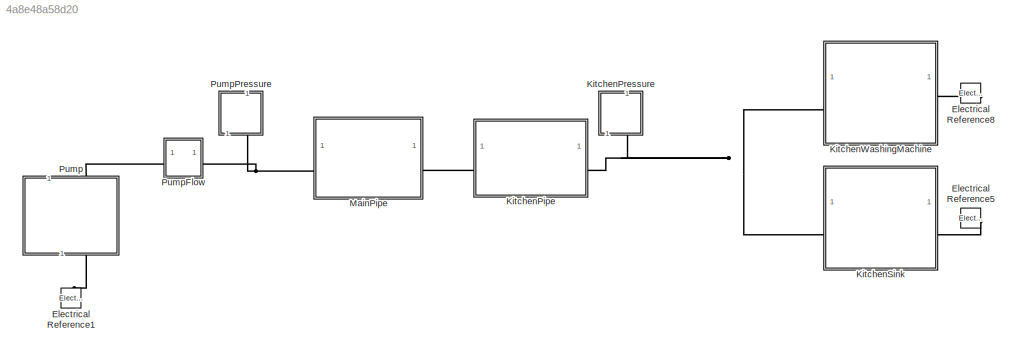
MODEL slx_4a8e48a58d20
KIND model
CONFIG AbsTol = 1e-3
CONFIG EnableMultiTasking = off
CONFIG FixedStep = auto
CONFIG MaxStep = auto
CONFIG MinStep = auto
CONFIG RelTol = 1e-3
CONFIG SampleTimeConstraint = Unconstrained
CONFIG SolverName = VariableStepAuto
CONFIG StartTime = 0.0
CONFIG StopTime = 10
BLOCK [Reference] Electrical Reference1  REF=fl_lib/Electrical/Electrical Elements/Electrical Reference
  SourceBlock = fl_lib/Electrical/Electrical Elements/Electrical Reference
  SourceType = Electrical Reference
BLOCK [Reference] Electrical Reference5  REF=fl_lib/Electrical/Electrical Elements/Electrical Reference
  NameLocation = right
  SourceBlock = fl_lib/Electrical/Electrical Elements/Electrical Reference
  SourceType = Electrical Reference
BLOCK [Reference] Electrical Reference8  REF=fl_lib/Electrical/Electrical Elements/Electrical Reference
  NameLocation = right
  SourceBlock = fl_lib/Electrical/Electrical Elements/Electrical Reference
  SourceType = Electrical Reference
BLOCK [SubSystem] KitchenPipe
  C = 1
  L = 1
  R = 1
  ReferencedSubsystem = PipeModel
  icon = on
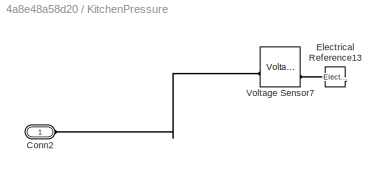
BLOCK [SubSystem] KitchenPressure
  NameLocation = right
BLOCK [PMIOPort] KitchenPressure/Conn2
  Side = Left
BLOCK [Reference] KitchenPressure/Electrical Reference13  REF=fl_lib/Electrical/Electrical Elements/Electrical Reference
  NameLocation = right
  SourceBlock = fl_lib/Electrical/Electrical Elements/Electrical Reference
  SourceType = Electrical Reference
BLOCK [Reference] KitchenPressure/Voltage Sensor7  REF=fl_lib/Electrical/Electrical Sensors/Voltage Sensor
  SourceBlock = fl_lib/Electrical/Electrical Sensors/Voltage Sensor
  SourceType = Voltage Sensor
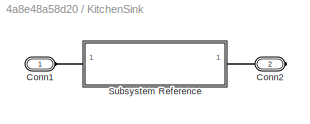
BLOCK [SubSystem] KitchenSink
BLOCK [PMIOPort] KitchenSink/Conn1
  Side = Left
BLOCK [PMIOPort] KitchenSink/Conn2
  Port = 2
  Side = Right
BLOCK [SubSystem] KitchenSink/Subsystem Reference
  R = R
  ReferencedSubsystem = ApplianceModel
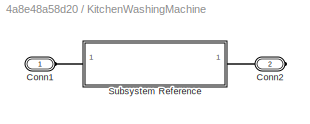
BLOCK [SubSystem] KitchenWashingMachine
BLOCK [PMIOPort] KitchenWashingMachine/Conn1
  Side = Left
BLOCK [PMIOPort] KitchenWashingMachine/Conn2
  Port = 2
  Side = Right
BLOCK [SubSystem] KitchenWashingMachine/Subsystem Reference
  R = R
  ReferencedSubsystem = ApplianceModel
BLOCK [SubSystem] MainPipe
  C = 1
  L = 1
  R = 1
  ReferencedSubsystem = PipeModel
  icon = on
BLOCK [SubSystem] Pump
  NameLocation = right
  ReferencedSubsystem = PumpModel
  V = 1
  icon = on
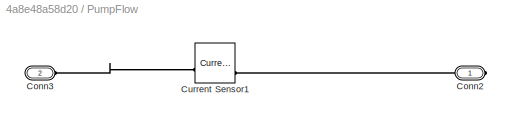
BLOCK [SubSystem] PumpFlow
BLOCK [PMIOPort] PumpFlow/Conn2
  Side = Right
BLOCK [PMIOPort] PumpFlow/Conn3
  Port = 2
  Side = Left
BLOCK [Reference] PumpFlow/Current Sensor1  REF=fl_lib/Electrical/Electrical Sensors/Current Sensor
  SourceBlock = fl_lib/Electrical/Electrical Sensors/Current Sensor
  SourceType = Current Sensor
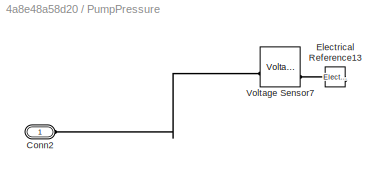
BLOCK [SubSystem] PumpPressure
  NameLocation = right
BLOCK [PMIOPort] PumpPressure/Conn2
  Side = Left
BLOCK [Reference] PumpPressure/Electrical Reference13  REF=fl_lib/Electrical/Electrical Elements/Electrical Reference
  NameLocation = right
  SourceBlock = fl_lib/Electrical/Electrical Elements/Electrical Reference
  SourceType = Electrical Reference
BLOCK [Reference] PumpPressure/Voltage Sensor7  REF=fl_lib/Electrical/Electrical Sensors/Voltage Sensor
  SourceBlock = fl_lib/Electrical/Electrical Sensors/Voltage Sensor
  SourceType = Voltage Sensor
PLINE Electrical Reference1:LConn1 -- Pump:RConn1
PLINE Electrical Reference5:LConn1 -- KitchenSink:RConn1
PLINE Electrical Reference8:LConn1 -- KitchenWashingMachine:RConn1
PLINE KitchenPipe:LConn1 -- MainPipe:RConn1
PNET net1: KitchenPipe:RConn1 -- KitchenPressure:LConn1 -- KitchenSink:LConn1 -- KitchenWashingMachine:LConn1
PLINE KitchenPressure/Conn2:RConn1 -- KitchenPressure/Voltage Sensor7:LConn1
PLINE KitchenPressure/Electrical Reference13:LConn1 -- KitchenPressure/Voltage Sensor7:RConn2
PLINE KitchenSink/Conn1:RConn1 -- KitchenSink/Subsystem Reference:LConn1
PLINE KitchenSink/Conn2:RConn1 -- KitchenSink/Subsystem Reference:RConn1
PLINE KitchenWashingMachine/Conn1:RConn1 -- KitchenWashingMachine/Subsystem Reference:LConn1
PLINE KitchenWashingMachine/Conn2:RConn1 -- KitchenWashingMachine/Subsystem Reference:RConn1
PNET net2: MainPipe:LConn1 -- PumpFlow:RConn1 -- PumpPressure:LConn1
PLINE Pump:LConn1 -- PumpFlow:LConn1
PLINE PumpFlow/Conn2:RConn1 -- PumpFlow/Current Sensor1:RConn2
PLINE PumpFlow/Conn3:RConn1 -- PumpFlow/Current Sensor1:LConn1
PLINE PumpPressure/Conn2:RConn1 -- PumpPressure/Voltage Sensor7:LConn1
PLINE PumpPressure/Electrical Reference13:LConn1 -- PumpPressure/Voltage Sensor7:RConn2
note: PNET lines group multi-terminal physical nets as a canonical sorted terminal list (undirected conserving connections); 2-terminal nets keep the pairwise PLINE form
